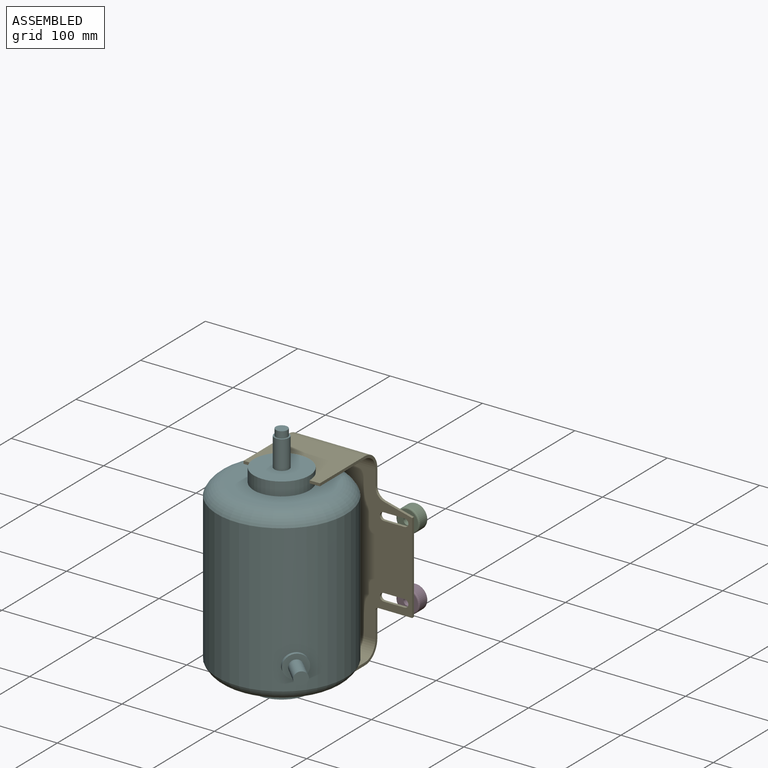
[diagram: assembled view]
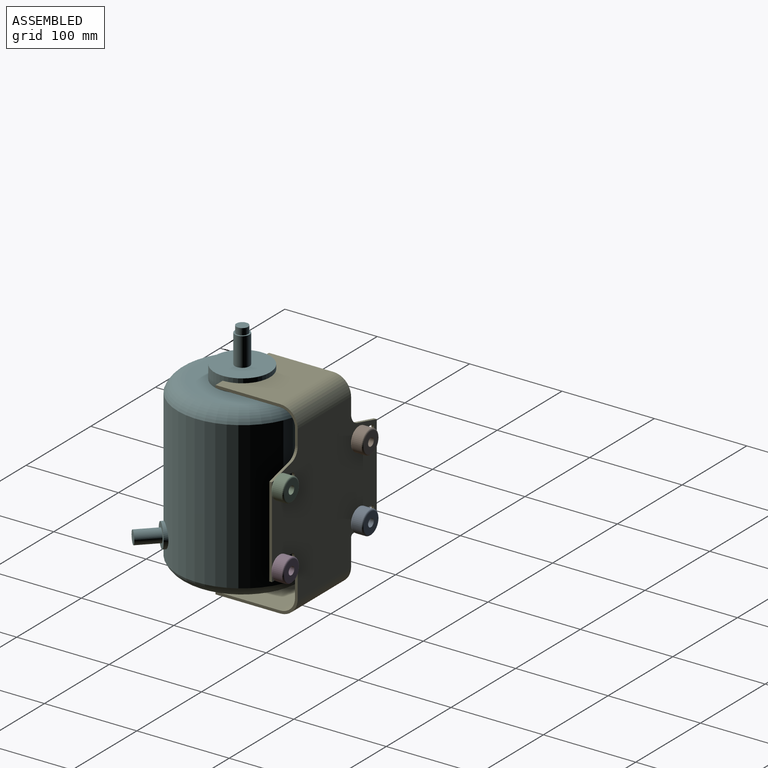
[diagram: assembled view, second angle]
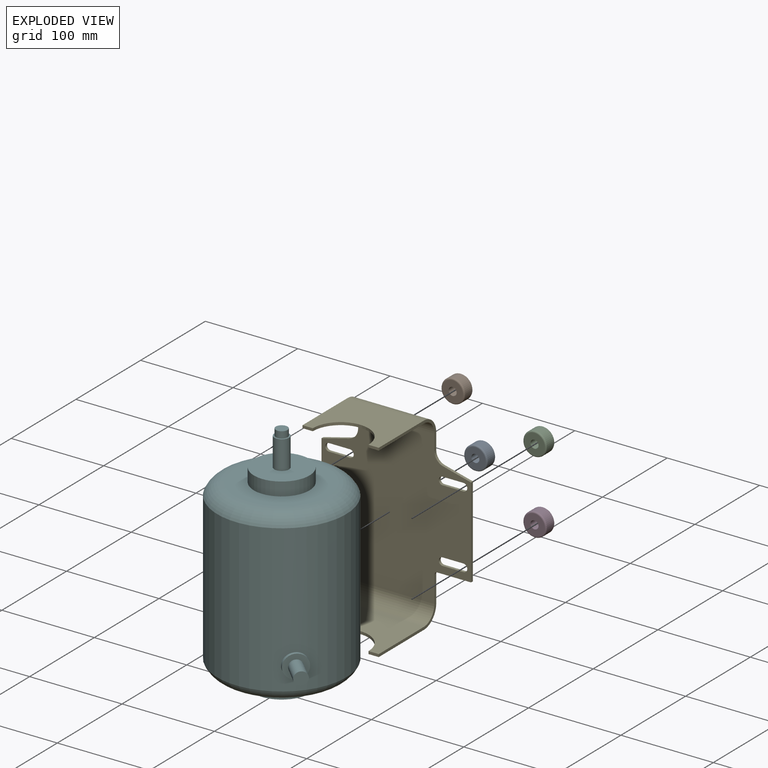
[diagram: exploded view]
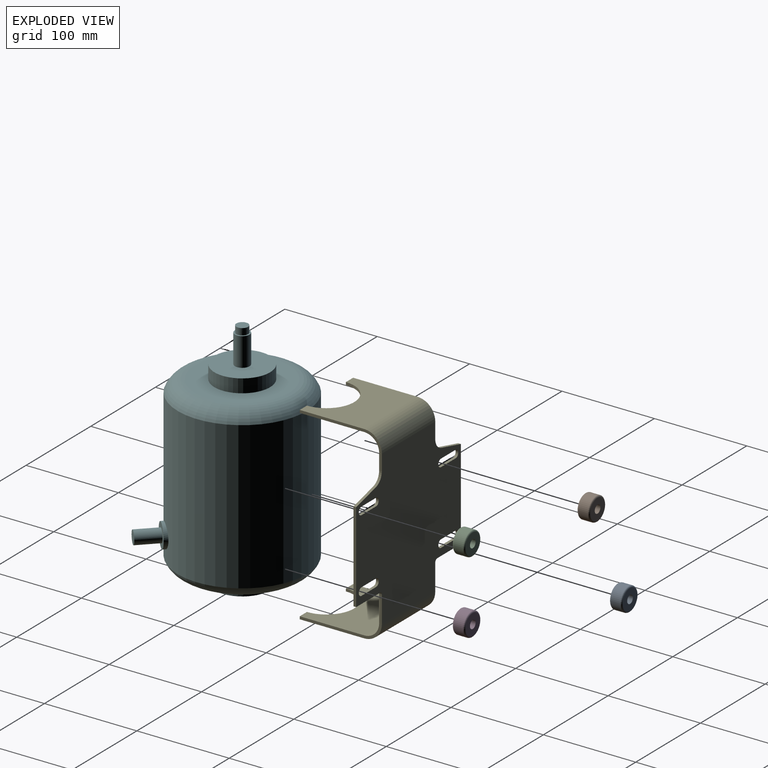
[diagram: exploded view, second angle]
ASSEMBLY  parts=6 mates=5
PART A: 6 faces, bbox 27.5x13.5x27.5 mm
  f0: cylinder r=4.37mm len=13.49mm, axis (0,1,0), area 370.1mm2, adj f2,f3
  f1: cylinder r=12.7mm len=25.4mm, axis (0,1,0), area 823.4mm2, adj f4,f5
  f2: plane 22.23x22.23mm, normal (0,-1,0), area 328.1mm2, adj f0,f5
  f3: plane 22.23x22.23mm, normal (0,1,0), area 328.1mm2, adj f0,f4
  f4: torus R=11.11mm, axis (0,-1,0), area 189.9mm2, adj f1,f3
  f5: torus R=11.11mm, axis (0,-1,0), area 189.9mm2, adj f1,f2
PART B: same geometry as A
PART C: same geometry as A
PART D: same geometry as A
PART E: 46 faces, bbox 204.8x161.9x88.9 mm
  f0: plane 88.9x36.18mm, normal (0,1,0), area 334.8mm2, adj f6,f8,f9,f10,f13,f14,f15,f42
  f1: plane 88.9x47.63mm, normal (0,-1,0), area 368.2mm2, adj f4,f10,f11,f12,f15,f16,f17,f45
  f2: plane 11.11x2.92mm, normal (0,0,1), area 32.5mm2, adj f5,f12,f17,f18
  f3: plane 11.11x2.92mm, normal (0,0,1), area 32.5mm2, adj f7,f8,f13,f19
  f4: plane 11.11x2.92mm, normal (0,0,1), area 32.5mm2, adj f1,f12,f17,f18
  f5: plane 88.9x47.63mm, normal (0,1,0), area 368.2mm2, adj f2,f10,f11,f12,f15,f16,f17,f44
  f6: plane 11.11x2.92mm, normal (0,0,1), area 32.5mm2, adj f0,f8,f13,f19
  f7: plane 88.9x36.18mm, normal (0,-1,0), area 334.8mm2, adj f3,f8,f9,f10,f13,f14,f15,f43
  f8: plane 82.55x69.85mm, normal (1,0,0), area 4337mm2, adj f0,f3,f6,f7,f9,f19
  f9: cylinder r=19.05mm len=82.55mm, axis (0,-1,0), area 2470.2mm2, adj f0,f7,f8,f10
  f10: plane 166.69x161.93mm, normal (0,0,-1), area 20992.8mm2, adj f0,f1,f5,f7,f9,f11,f20,f21
  f11: cylinder r=19.05mm len=82.55mm, axis (0,-1,0), area 2470.2mm2, adj f1,f5,f10,f12
  f12: plane 82.55x69.85mm, normal (-1,0,0), area 4337mm2, adj f1,f2,f4,f5,f11,f18
  f13: plane 82.55x69.85mm, normal (-1,0,0), area 4337mm2, adj f0,f3,f6,f7,f14,f19
  f14: cylinder r=16.13mm len=82.55mm, axis (0,-1,0), area 2091.4mm2, adj f0,f7,f13,f15
  f15: plane 166.69x161.93mm, normal (0,0,1), area 20992.8mm2, adj f0,f1,f5,f7,f14,f16,f20,f21
  f16: cylinder r=16.13mm len=82.55mm, axis (0,-1,0), area 2091.4mm2, adj f1,f5,f15,f17
  f17: plane 82.55x69.85mm, normal (1,0,0), area 4337mm2, adj f1,f2,f4,f5,f16,f18
  f18: cylinder r=30.16mm len=60.33mm, axis (1,0,0), area 276.8mm2, adj f2,f4,f12,f17
  f19: cylinder r=30.16mm len=60.33mm, axis (1,0,0), area 276.8mm2, adj f3,f6,f8,f13
  f20: cylinder r=4.19mm len=8.38mm, axis (0,0,1), area 38.5mm2, adj f10,f15,f21,f30
  f21: plane 22.48x2.92mm, normal (-1,0,0), area 65.7mm2, adj f10,f15,f20,f22
  f22: cylinder r=4.19mm len=8.38mm, axis (0,0,1), area 38.5mm2, adj f10,f15,f21,f30
  f23: cylinder r=4.19mm len=8.38mm, axis (0,0,1), area 38.5mm2, adj f10,f15,f24,f28
  f24: plane 22.48x2.92mm, normal (1,0,0), area 65.7mm2, adj f10,f15,f23,f25
  f25: cylinder r=4.19mm len=8.38mm, axis (0,0,1), area 38.5mm2, adj f10,f15,f24,f28
  f26: plane 30.14x7.72mm, normal (0.97,-0.25,0), area 90.9mm2, adj f10,f15,f29,f43
  f27: plane 36.51x2.92mm, normal (-1,0,0), area 106.7mm2, adj f10,f15,f29,f45
  f28: plane 22.48x2.92mm, normal (-1,0,0), area 65.7mm2, adj f10,f15,f23,f25
  f29: plane 97.79x2.92mm, normal (0,-1,0), area 285.6mm2, adj f10,f15,f26,f27
  f30: plane 22.48x2.92mm, normal (1,0,0), area 65.7mm2, adj f10,f15,f20,f22
  f31: cylinder r=4.19mm len=8.38mm, axis (0,0,1), area 38.5mm2, adj f10,f15,f32,f41
  f32: plane 22.48x2.92mm, normal (-1,0,0), area 65.7mm2, adj f10,f15,f31,f33
  f33: cylinder r=4.19mm len=8.38mm, axis (0,0,1), area 38.5mm2, adj f10,f15,f32,f41
  f34: cylinder r=4.19mm len=8.38mm, axis (0,0,1), area 38.5mm2, adj f10,f15,f35,f39
  f35: plane 22.48x2.92mm, normal (1,0,0), area 65.7mm2, adj f10,f15,f34,f36
  f36: cylinder r=4.19mm len=8.38mm, axis (0,0,1), area 38.5mm2, adj f10,f15,f35,f39
  f37: plane 30.14x7.72mm, normal (0.97,0.25,0), area 90.9mm2, adj f10,f15,f40,f42
  f38: plane 36.51x2.92mm, normal (-1,0,0), area 106.7mm2, adj f10,f15,f40,f44
  f39: plane 22.48x2.92mm, normal (-1,0,0), area 65.7mm2, adj f10,f15,f34,f36
  f40: plane 97.79x2.92mm, normal (0,1,0), area 285.6mm2, adj f10,f15,f37,f38
  f41: plane 22.48x2.92mm, normal (1,0,0), area 65.7mm2, adj f10,f15,f31,f33
  f42: cylinder r=12.7mm len=12.3mm, axis (0,0,1), area 49mm2, adj f0,f10,f15,f37
  f43: cylinder r=12.7mm len=12.3mm, axis (0,0,-1), area 49mm2, adj f7,f10,f15,f26
  f44: cylinder r=3.17mm len=3.18mm, axis (0,0,1), area 14.6mm2, adj f5,f10,f15,f38
  f45: cylinder r=3.17mm len=3.18mm, axis (0,0,-1), area 14.6mm2, adj f1,f10,f15,f27
PART F: 17 faces, bbox 251.4x154.6x175.7 mm
  f0: cylinder r=69.85mm len=159.7mm, axis (-1,0,0), area 69582.1mm2, adj f1,f5,f13
  f1: torus R=50.8mm, axis (-1,0,0), area 9393.4mm2, adj f0,f4
  f2: plane 60.33x60.33mm, normal (-1,0,0), area 2858.1mm2, adj f3
  f3: cylinder r=30.16mm len=60.33mm, axis (1,0,0), area 2587.4mm2, adj f2,f4
  f4: plane 101.6x101.6mm, normal (-1,0,0), area 5249.2mm2, adj f1,f3
  f5: torus R=50.8mm, axis (1,0,0), area 9393.4mm2, adj f0,f8
  f6: plane 60.33x60.33mm, normal (1,0,0), area 2660.2mm2, adj f7,f9
  f7: cylinder r=30.16mm len=60.33mm, axis (-1,0,0), area 2760.7mm2, adj f6,f8
  f8: plane 101.6x101.6mm, normal (1,0,0), area 5249.2mm2, adj f5,f7
  f9: cylinder r=7.94mm len=30.96mm, axis (-1,0,0), area 1543.9mm2, adj f6,f10
  f10: plane 15.88x15.88mm, normal (1,0,0), area 71.3mm2, adj f9,f11
  f11: cylinder r=6.35mm len=12.7mm, axis (-1,0,0), area 285mm2, adj f10,f12
  f12: plane 12.7x12.7mm, normal (1,0,0), area 126.7mm2, adj f11
  f13: cylinder r=12.7mm len=25.4mm, axis (0,0,-1), area 299.7mm2, adj f0,f14
  f14: plane 25.4x25.4mm, normal (0,0,1), area 350.1mm2, adj f13,f15
  f15: cylinder r=7.06mm len=25.4mm, axis (0,0,-1), area 1126.9mm2, adj f14,f16
  f16: plane 14.12x14.12mm, normal (0,0,1), area 156.6mm2, adj f15
PLACE A t=(-50.23,8.24,-39.51)mm
PLACE B t=(-50.23,8.24,39.42)mm
PLACE C t=(72.71,8.24,39.42)mm
PLACE D t=(72.71,8.24,-39.51)mm
PLACE E rot(axis=(0.58,-0.58,0.58),120deg) t=(0,-95.91,-0.05)mm
PLACE F rot(axis=(0.68,-0.28,0.68),148.6deg) t=(0,-95.91,-92.56)mm
MATE revolute E.f23 <-> C.f0  axis (0,-1,0) through (72.71,-7.01,39.42)mm
MATE fastened F.f0 <-> E.f18  axis (0,0,1) through (0,-95.91,102.35)mm
MATE revolute E.f31 <-> A.f0  axis (0,-1,0) through (-50.23,-7.01,-39.51)mm
MATE revolute E.f22 <-> D.f0  axis (0,-1,0) through (72.71,-7.01,-39.51)mm
MATE revolute E.f36 <-> B.f0  axis (0,-1,0) through (-50.23,-7.01,39.42)mm
